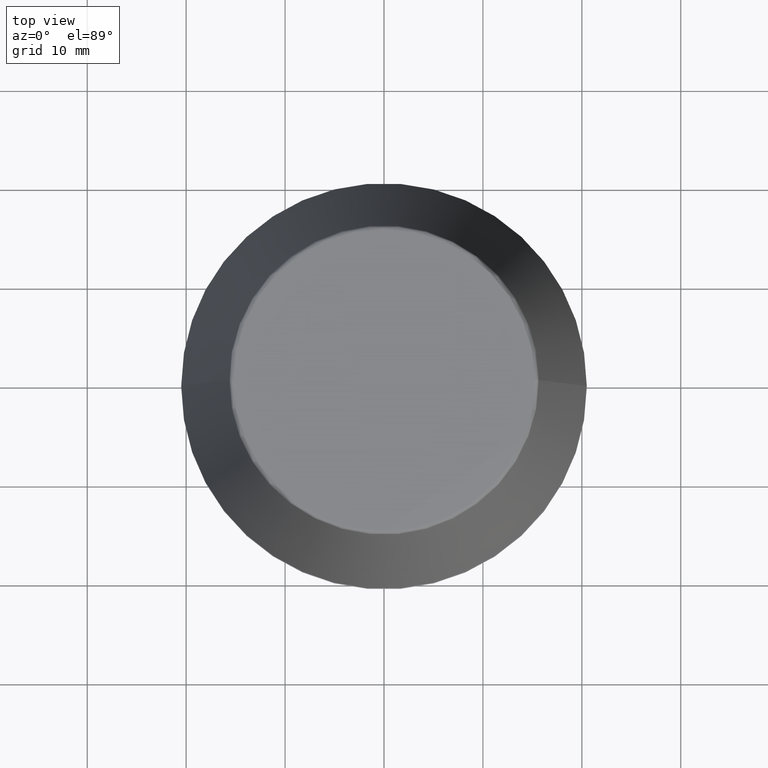
[diagram: clean part render]
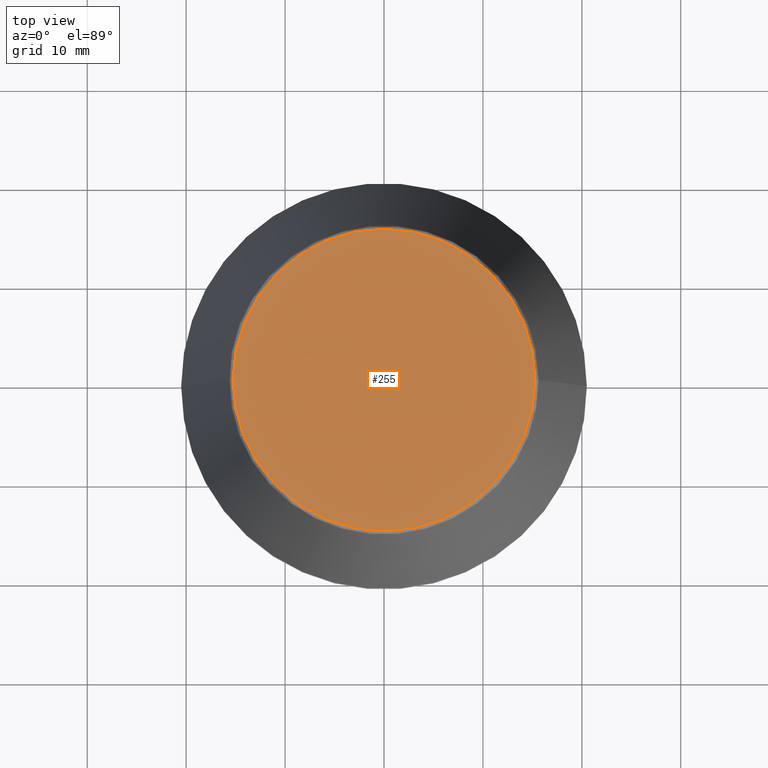
[diagram: same view with one face highlighted and labeled with its STEP entity id]
A machine part, top view. The second image highlights one B-rep face of the part: STEP entity #255.
In plain terms, the highlighted planar face has unit normal (0, 0, -1).
Its self-contained STEP definition (entity closure, byte-faithful):
#6 = DIRECTION ( 'NONE',  ( 1.000000000000000000, 0.0000000000000000000, 0.0000000000000000000 ) ) ;
#24 = DIRECTION ( 'NONE',  ( 1.000000000000000000, 0.0000000000000000000, 0.0000000000000000000 ) ) ;
#30 = CIRCLE ( 'NONE', #252, 15.24773554530077600 ) ;
#56 = ORIENTED_EDGE ( 'NONE', *, *, #341, .T. ) ;
#62 = CARTESIAN_POINT ( 'NONE',  ( -15.24773554530077600, 1.891563625393435400E-015, 46.00000000000000000 ) ) ;
#86 = DIRECTION ( 'NONE',  ( 0.0000000000000000000, 0.0000000000000000000, -1.000000000000000000 ) ) ;
#126 = AXIS2_PLACEMENT_3D ( 'NONE', #344, #253, #24 ) ;
#138 = DIRECTION ( 'NONE',  ( -1.000000000000000000, 0.0000000000000000000, -0.0000000000000000000 ) ) ;
#146 = CARTESIAN_POINT ( 'NONE',  ( 0.0000000000000000000, 0.0000000000000000000, 46.00000000000000000 ) ) ;
#156 = VERTEX_POINT ( 'NONE', #62 ) ;
#170 = CARTESIAN_POINT ( 'NONE',  ( 0.0000000000000000000, 15.24773554530077600, 46.00000000000000000 ) ) ;
#195 = PLANE ( 'NONE',  #224 ) ;
#224 = AXIS2_PLACEMENT_3D ( 'NONE', #170, #86, #138 ) ;
#249 = EDGE_CURVE ( 'NONE', #156, #317, #283, .T. ) ;
#250 = CARTESIAN_POINT ( 'NONE',  ( 15.24773554530077600, 0.0000000000000000000, 46.00000000000000000 ) ) ;
#252 = AXIS2_PLACEMENT_3D ( 'NONE', #146, #267, #6 ) ;
#253 = DIRECTION ( 'NONE',  ( -0.0000000000000000000, -0.0000000000000000000, 1.000000000000000000 ) ) ;
#255 = ADVANCED_FACE ( 'NONE', ( #367 ), #195, .F. ) ;
#267 = DIRECTION ( 'NONE',  ( -0.0000000000000000000, -0.0000000000000000000, 1.000000000000000000 ) ) ;
#279 = EDGE_LOOP ( 'NONE', ( #56, #335 ) ) ;
#283 = CIRCLE ( 'NONE', #126, 15.24773554530077600 ) ;
#317 = VERTEX_POINT ( 'NONE', #250 ) ;
#335 = ORIENTED_EDGE ( 'NONE', *, *, #249, .T. ) ;
#341 = EDGE_CURVE ( 'NONE', #317, #156, #30, .T. ) ;
#344 = CARTESIAN_POINT ( 'NONE',  ( 0.0000000000000000000, 0.0000000000000000000, 46.00000000000000000 ) ) ;
#367 = FACE_OUTER_BOUND ( 'NONE', #279, .T. ) ;